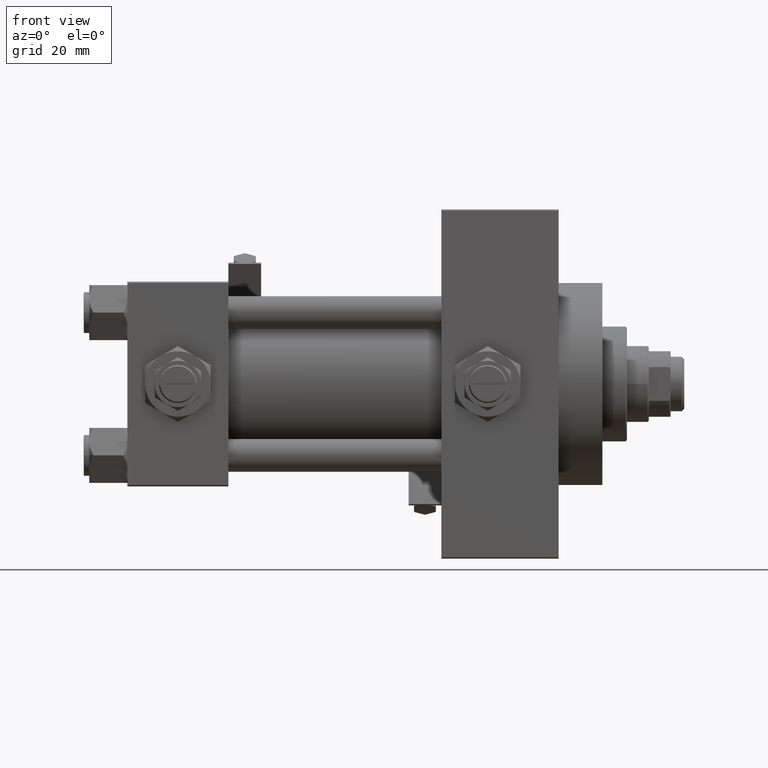
[diagram: clean part render]
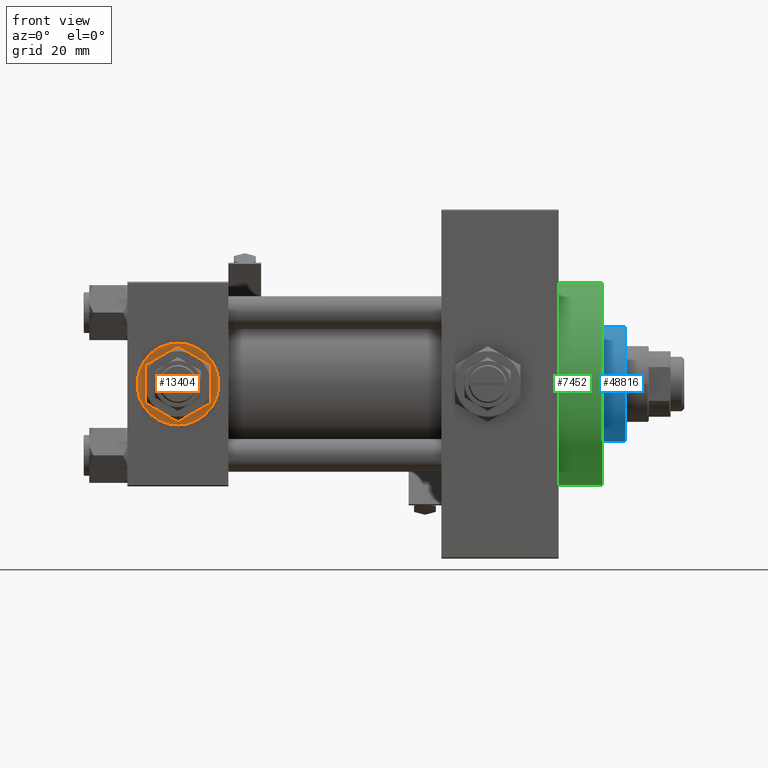
[diagram: same view with three faces highlighted in distinct colors, each labeled with its STEP entity id]
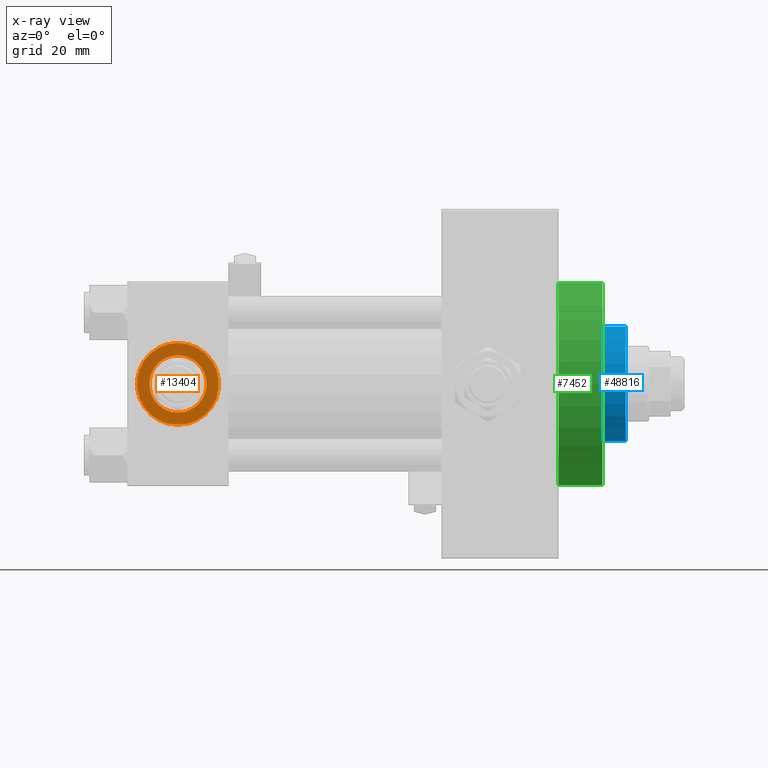
[diagram: x-ray of the same camera — body ghosted, the three highlighted faces saturated]
A machine part, front view with three faces highlighted in distinct colors.
The next image is the same camera in x-ray (body ghosted, the three faces saturated) — at least one of them is partly hidden behind the body in this view.
Their STEP definitions:

[orange] entity #13404 — the highlighted planar face has unit normal (0, -1, -0).
#2148 = VERTEX_POINT ( 'NONE', #25093 ) ;
#2801 = VERTEX_POINT ( 'NONE', #25996 ) ;
#3109 = DIRECTION ( 'NONE',  ( 0.000000000000000000, -1.000000000000000000, -8.673617379884036705E-17 ) ) ;
#3748 = DIRECTION ( 'NONE',  ( 0.000000000000000000, 0.000000000000000000, -1.000000000000000000 ) ) ;
#4337 = AXIS2_PLACEMENT_3D ( 'NONE', #21250, #16304, #9230 ) ;
#4753 = ORIENTED_EDGE ( 'NONE', *, *, #43518, .F. ) ;
#6141 = DIRECTION ( 'NONE',  ( 0.000000000000000000, -1.000000000000000000, -8.673617379884036705E-17 ) ) ;
#7694 = DIRECTION ( 'NONE',  ( 0.000000000000000000, -1.000000000000000000, -8.673617379884036705E-17 ) ) ;
#9230 = DIRECTION ( 'NONE',  ( 0.000000000000000000, 0.000000000000000000, -1.000000000000000000 ) ) ;
#9308 = CARTESIAN_POINT ( 'NONE',  ( 18.50000000000000000, -37.30000000000000426, -3.452099717193846907E-15 ) ) ;
#12970 = FACE_OUTER_BOUND ( 'NONE', #22762, .T. ) ;
#13404 = ADVANCED_FACE ( 'NONE', ( #13736, #12970 ), #41466, .T. ) ;
#13736 = FACE_BOUND ( 'NONE', #27729, .T. ) ;
#16304 = DIRECTION ( 'NONE',  ( 0.000000000000000000, -1.000000000000000000, -8.673617379884036705E-17 ) ) ;
#16626 = AXIS2_PLACEMENT_3D ( 'NONE', #31486, #39572, #3748 ) ;
#18602 = EDGE_CURVE ( 'NONE', #47232, #2148, #47460, .T. ) ;
#20494 = ORIENTED_EDGE ( 'NONE', *, *, #29354, .T. ) ;
#20496 = CARTESIAN_POINT ( 'NONE',  ( 18.50000000000000000, -37.30000000000000426, -3.452099717193846907E-15 ) ) ;
#21250 = CARTESIAN_POINT ( 'NONE',  ( 18.50000000000000000, -37.30000000000000426, -3.452099717193846907E-15 ) ) ;
#21544 = AXIS2_PLACEMENT_3D ( 'NONE', #20496, #7694, #44558 ) ;
#22762 = EDGE_LOOP ( 'NONE', ( #20494, #28879 ) ) ;
#25093 = CARTESIAN_POINT ( 'NONE',  ( 18.50000000000000000, -37.30000000000000426, -10.48000000000000398 ) ) ;
#25996 = CARTESIAN_POINT ( 'NONE',  ( 18.50000000000000000, -37.30000000000000426, -15.00000000000000533 ) ) ;
#26654 = CARTESIAN_POINT ( 'NONE',  ( 18.50000000000000000, -37.30000000000000426, -3.452099717193846907E-15 ) ) ;
#27219 = AXIS2_PLACEMENT_3D ( 'NONE', #9308, #6141, #41205 ) ;
#27729 = EDGE_LOOP ( 'NONE', ( #4753, #31253 ) ) ;
#28879 = ORIENTED_EDGE ( 'NONE', *, *, #32711, .T. ) ;
#29354 = EDGE_CURVE ( 'NONE', #2801, #43248, #32717, .T. ) ;
#31253 = ORIENTED_EDGE ( 'NONE', *, *, #18602, .F. ) ;
#31486 = CARTESIAN_POINT ( 'NONE',  ( 18.50000000000000000, -37.30000000000000426, -3.452099717193846907E-15 ) ) ;
#32711 = EDGE_CURVE ( 'NONE', #43248, #2801, #43345, .T. ) ;
#32717 = CIRCLE ( 'NONE', #4337, 15.00000000000000178 ) ;
#32982 = CARTESIAN_POINT ( 'NONE',  ( 18.50000000000000355, -37.30000000000000426, 14.99999999999999822 ) ) ;
#33613 = CIRCLE ( 'NONE', #50296, 10.48000000000000043 ) ;
#39572 = DIRECTION ( 'NONE',  ( 0.000000000000000000, -1.000000000000000000, -8.673617379884036705E-17 ) ) ;
#41205 = DIRECTION ( 'NONE',  ( 0.000000000000000000, 8.673617379884036705E-17, -1.000000000000000000 ) ) ;
#41466 = PLANE ( 'NONE',  #27219 ) ;
#43248 = VERTEX_POINT ( 'NONE', #32982 ) ;
#43345 = CIRCLE ( 'NONE', #16626, 15.00000000000000178 ) ;
#43518 = EDGE_CURVE ( 'NONE', #2148, #47232, #33613, .T. ) ;
#44558 = DIRECTION ( 'NONE',  ( 0.000000000000000000, 0.000000000000000000, -1.000000000000000000 ) ) ;
#44793 = CARTESIAN_POINT ( 'NONE',  ( 18.50000000000000000, -37.30000000000000426, 10.47999999999999687 ) ) ;
#47232 = VERTEX_POINT ( 'NONE', #44793 ) ;
#47460 = CIRCLE ( 'NONE', #21544, 10.48000000000000043 ) ;
#50296 = AXIS2_PLACEMENT_3D ( 'NONE', #26654, #3109, #50976 ) ;
#50976 = DIRECTION ( 'NONE',  ( 0.000000000000000000, 0.000000000000000000, -1.000000000000000000 ) ) ;

[blue] entity #48816 — the highlighted cylindrical surface (partial cylindrical patch) has radius 21 mm, axis along (-1, 0, 0).
#337 = DIRECTION ( 'NONE',  ( -0.000000000000000000, -0.000000000000000000, -1.000000000000000000 ) ) ;
#510 = CARTESIAN_POINT ( 'NONE',  ( 0.000000000000000000, 0.000000000000000000, 43.25999999999999801 ) ) ;
#3667 = ORIENTED_EDGE ( 'NONE', *, *, #8319, .T. ) ;
#4393 = VERTEX_POINT ( 'NONE', #46934 ) ;
#5420 = AXIS2_PLACEMENT_3D ( 'NONE', #7797, #51743, #15909 ) ;
#7797 = CARTESIAN_POINT ( 'NONE',  ( 0.000000000000000000, 0.000000000000000000, 52.25999999999999801 ) ) ;
#8319 = EDGE_CURVE ( 'NONE', #50803, #19859, #12937, .T. ) ;
#8934 = EDGE_CURVE ( 'NONE', #22026, #4393, #47208, .T. ) ;
#9722 = DIRECTION ( 'NONE',  ( -0.000000000000000000, -0.000000000000000000, -1.000000000000000000 ) ) ;
#11028 = CARTESIAN_POINT ( 'NONE',  ( 0.000000000000000000, 0.000000000000000000, 51.75999999999999801 ) ) ;
#12937 = CIRCLE ( 'NONE', #29623, 21.00000000000000000 ) ;
#15909 = DIRECTION ( 'NONE',  ( -1.000000000000000000, 0.000000000000000000, 0.000000000000000000 ) ) ;
#16682 = FACE_OUTER_BOUND ( 'NONE', #41735, .T. ) ;
#18497 = CARTESIAN_POINT ( 'NONE',  ( -21.00000000000000000, 0.000000000000000000, 51.75999999999999801 ) ) ;
#19859 = VERTEX_POINT ( 'NONE', #51592 ) ;
#20211 = VECTOR ( 'NONE', #337, 1000.000000000000000 ) ;
#20762 = ORIENTED_EDGE ( 'NONE', *, *, #42767, .F. ) ;
#20974 = LINE ( 'NONE', #49218, #20211 ) ;
#22026 = VERTEX_POINT ( 'NONE', #30433 ) ;
#23611 = ORIENTED_EDGE ( 'NONE', *, *, #8934, .T. ) ;
#24299 = DIRECTION ( 'NONE',  ( 1.000000000000000000, 0.000000000000000000, 0.000000000000000000 ) ) ;
#25477 = AXIS2_PLACEMENT_3D ( 'NONE', #510, #44434, #24299 ) ;
#29470 = ORIENTED_EDGE ( 'NONE', *, *, #42643, .T. ) ;
#29623 = AXIS2_PLACEMENT_3D ( 'NONE', #11028, #35622, #46605 ) ;
#30433 = CARTESIAN_POINT ( 'NONE',  ( 21.00000000000000000, 2.571758278209441661E-15, 43.25999999999999801 ) ) ;
#31076 = VECTOR ( 'NONE', #9722, 1000.000000000000000 ) ;
#32652 = CYLINDRICAL_SURFACE ( 'NONE', #5420, 21.00000000000000000 ) ;
#35622 = DIRECTION ( 'NONE',  ( 0.000000000000000000, 0.000000000000000000, -1.000000000000000000 ) ) ;
#37702 = CARTESIAN_POINT ( 'NONE',  ( -21.00000000000000000, 0.000000000000000000, 52.25999999999999801 ) ) ;
#38474 = LINE ( 'NONE', #37702, #31076 ) ;
#41735 = EDGE_LOOP ( 'NONE', ( #3667, #29470, #23611, #20762 ) ) ;
#42643 = EDGE_CURVE ( 'NONE', #19859, #22026, #20974, .T. ) ;
#42767 = EDGE_CURVE ( 'NONE', #50803, #4393, #38474, .T. ) ;
#44434 = DIRECTION ( 'NONE',  ( 0.000000000000000000, 0.000000000000000000, 1.000000000000000000 ) ) ;
#46605 = DIRECTION ( 'NONE',  ( 1.000000000000000000, 0.000000000000000000, 0.000000000000000000 ) ) ;
#46934 = CARTESIAN_POINT ( 'NONE',  ( -21.00000000000000000, 0.000000000000000000, 43.25999999999999801 ) ) ;
#47208 = CIRCLE ( 'NONE', #25477, 21.00000000000000000 ) ;
#48816 = ADVANCED_FACE ( 'NONE', ( #16682 ), #32652, .T. ) ;
#49218 = CARTESIAN_POINT ( 'NONE',  ( 21.00000000000000000, 2.571758278209441661E-15, 52.25999999999999801 ) ) ;
#50803 = VERTEX_POINT ( 'NONE', #18497 ) ;
#51592 = CARTESIAN_POINT ( 'NONE',  ( 21.00000000000000000, 2.571758278209441661E-15, 51.75999999999999801 ) ) ;
#51743 = DIRECTION ( 'NONE',  ( -0.000000000000000000, -0.000000000000000000, -1.000000000000000000 ) ) ;

[green] entity #7452 — the highlighted cylindrical surface (partial cylindrical patch) has radius 37 mm, axis along (-1, -0, -0).
#140 = ORIENTED_EDGE ( 'NONE', *, *, #49937, .T. ) ;
#301 = FACE_OUTER_BOUND ( 'NONE', #28336, .T. ) ;
#2492 = CARTESIAN_POINT ( 'NONE',  ( 174.0000000000000000, 4.531193156845206793E-15, -37.00000000000000000 ) ) ;
#2838 = AXIS2_PLACEMENT_3D ( 'NONE', #40565, #7878, #8916 ) ;
#3327 = CIRCLE ( 'NONE', #13341, 37.00000000000000000 ) ;
#4033 = CARTESIAN_POINT ( 'NONE',  ( 174.0000000000000000, 0.000000000000000000, 37.00000000000000000 ) ) ;
#4037 = ORIENTED_EDGE ( 'NONE', *, *, #50231, .F. ) ;
#7452 = ADVANCED_FACE ( 'NONE', ( #301 ), #32469, .T. ) ;
#7807 = CARTESIAN_POINT ( 'NONE',  ( 174.0000000000000000, 0.000000000000000000, 0.000000000000000000 ) ) ;
#7878 = DIRECTION ( 'NONE',  ( -1.000000000000000000, -0.000000000000000000, -0.000000000000000000 ) ) ;
#8593 = DIRECTION ( 'NONE',  ( 0.000000000000000000, 0.000000000000000000, -1.000000000000000000 ) ) ;
#8720 = CARTESIAN_POINT ( 'NONE',  ( 157.9999999999999716, 0.000000000000000000, 37.00000000000000000 ) ) ;
#8916 = DIRECTION ( 'NONE',  ( 0.000000000000000000, 0.000000000000000000, 1.000000000000000000 ) ) ;
#9598 = VECTOR ( 'NONE', #21574, 1000.000000000000000 ) ;
#9840 = VERTEX_POINT ( 'NONE', #8720 ) ;
#12075 = VERTEX_POINT ( 'NONE', #2492 ) ;
#13124 = EDGE_CURVE ( 'NONE', #51213, #12075, #23003, .T. ) ;
#13341 = AXIS2_PLACEMENT_3D ( 'NONE', #48661, #40802, #28265 ) ;
#14191 = ORIENTED_EDGE ( 'NONE', *, *, #35371, .T. ) ;
#16723 = VERTEX_POINT ( 'NONE', #26216 ) ;
#18680 = CARTESIAN_POINT ( 'NONE',  ( 174.0000000000000000, 4.531193156845206793E-15, -37.00000000000000000 ) ) ;
#19217 = ORIENTED_EDGE ( 'NONE', *, *, #13124, .F. ) ;
#21069 = LINE ( 'NONE', #45885, #9598 ) ;
#21574 = DIRECTION ( 'NONE',  ( -1.000000000000000000, -0.000000000000000000, -0.000000000000000000 ) ) ;
#22866 = LINE ( 'NONE', #18680, #28863 ) ;
#23003 = CIRCLE ( 'NONE', #29697, 37.00000000000000000 ) ;
#26216 = CARTESIAN_POINT ( 'NONE',  ( 157.9999999999999716, 4.531193156845206793E-15, -37.00000000000000000 ) ) ;
#28265 = DIRECTION ( 'NONE',  ( 0.000000000000000000, 0.000000000000000000, -1.000000000000000000 ) ) ;
#28336 = EDGE_LOOP ( 'NONE', ( #4037, #19217, #140, #14191 ) ) ;
#28863 = VECTOR ( 'NONE', #50591, 1000.000000000000000 ) ;
#29697 = AXIS2_PLACEMENT_3D ( 'NONE', #7807, #44419, #8593 ) ;
#32469 = CYLINDRICAL_SURFACE ( 'NONE', #2838, 37.00000000000000000 ) ;
#35371 = EDGE_CURVE ( 'NONE', #9840, #16723, #3327, .T. ) ;
#40565 = CARTESIAN_POINT ( 'NONE',  ( 174.0000000000000000, 0.000000000000000000, 0.000000000000000000 ) ) ;
#40802 = DIRECTION ( 'NONE',  ( 1.000000000000000000, 0.000000000000000000, 0.000000000000000000 ) ) ;
#44419 = DIRECTION ( 'NONE',  ( 1.000000000000000000, 0.000000000000000000, 0.000000000000000000 ) ) ;
#45885 = CARTESIAN_POINT ( 'NONE',  ( 174.0000000000000000, 0.000000000000000000, 37.00000000000000000 ) ) ;
#48661 = CARTESIAN_POINT ( 'NONE',  ( 157.9999999999999716, 0.000000000000000000, 0.000000000000000000 ) ) ;
#49937 = EDGE_CURVE ( 'NONE', #51213, #9840, #21069, .T. ) ;
#50231 = EDGE_CURVE ( 'NONE', #12075, #16723, #22866, .T. ) ;
#50591 = DIRECTION ( 'NONE',  ( -1.000000000000000000, -0.000000000000000000, -0.000000000000000000 ) ) ;
#51213 = VERTEX_POINT ( 'NONE', #4033 ) ;